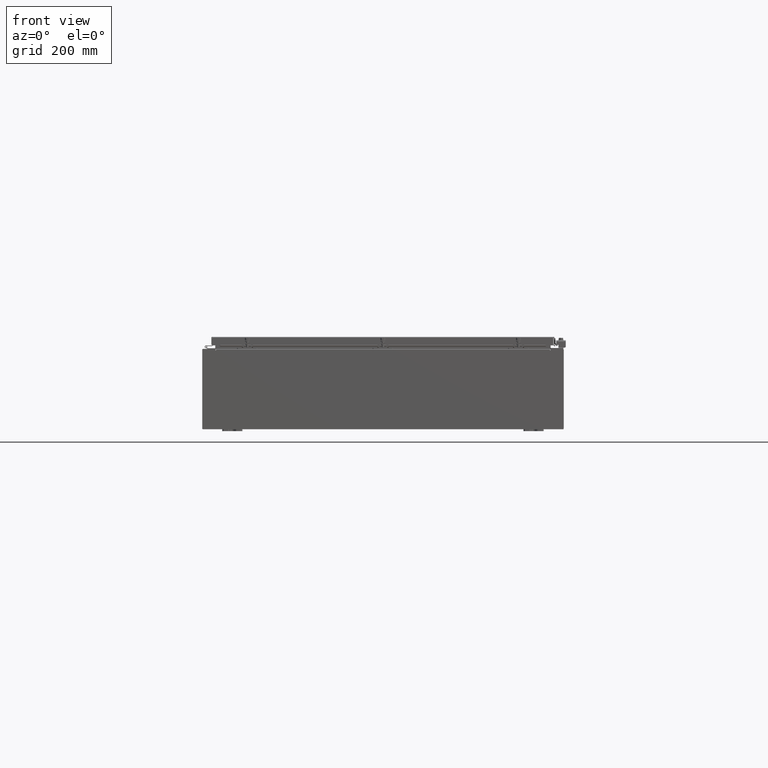
[diagram: clean part render]
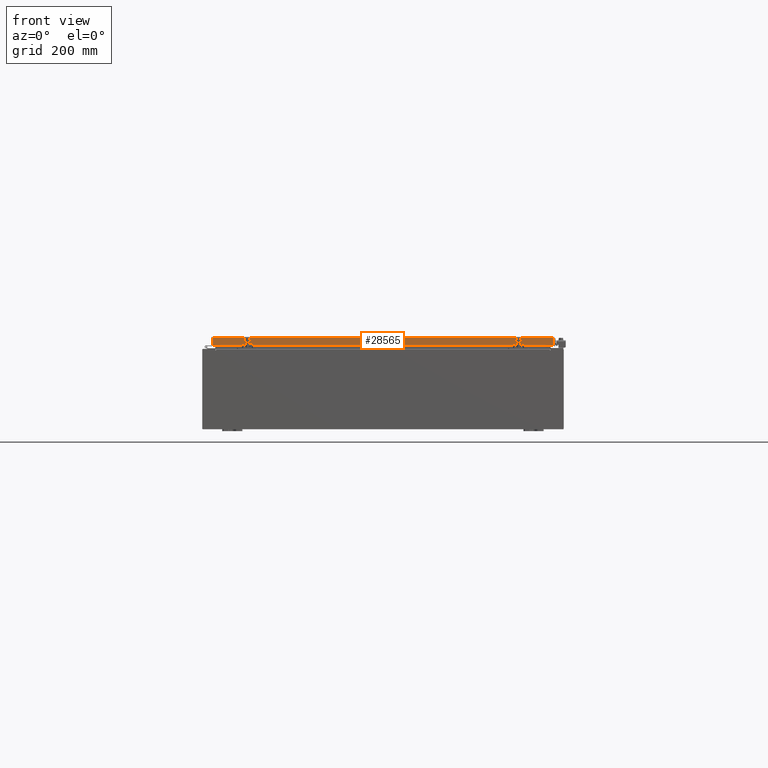
[diagram: same view with one face highlighted and labeled with its STEP entity id]
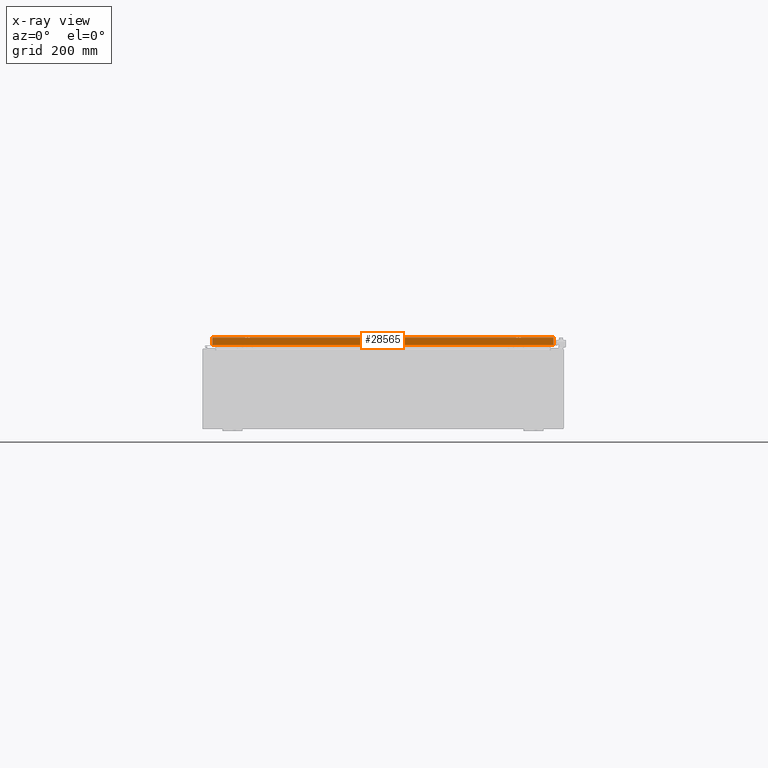
[diagram: x-ray of the same camera — body ghosted, the highlighted face saturated]
A machine part, front view. The second image highlights one B-rep face of the part: STEP entity #28565.
The next image is the same camera in x-ray: the body ghosted, the highlighted face saturated — about 0% of this face is hidden behind the body in this view.
In plain terms, the highlighted planar face has unit normal (-0, 1, -0).
Its self-contained STEP definition (entity closure, byte-faithful):
#1602 = LINE ( 'NONE', #49818, #38871 ) ;
#2931 = LINE ( 'NONE', #3341, #50149 ) ;
#2983 = VERTEX_POINT ( 'NONE', #62143 ) ;
#3341 = CARTESIAN_POINT ( 'NONE',  ( 16.98915786437627100, -29.09400000000000100, -0.07469999999999958600 ) ) ;
#3419 = LINE ( 'NONE', #14286, #42233 ) ;
#3760 = VECTOR ( 'NONE', #26784, 39.37007874015748100 ) ;
#4356 = LINE ( 'NONE', #61528, #14259 ) ;
#5036 = AXIS2_PLACEMENT_3D ( 'NONE', #62014, #18445, #52466 ) ;
#5350 = EDGE_CURVE ( 'NONE', #2983, #24829, #5596, .T. ) ;
#5596 = LINE ( 'NONE', #41689, #54332 ) ;
#5892 = CARTESIAN_POINT ( 'NONE',  ( -16.98915786437626700, -29.09400000000000100, -0.08769999999999547600 ) ) ;
#7914 = ORIENTED_EDGE ( 'NONE', *, *, #51559, .F. ) ;
#8029 = FACE_OUTER_BOUND ( 'NONE', #51658, .T. ) ;
#8956 = VERTEX_POINT ( 'NONE', #61886 ) ;
#14259 = VECTOR ( 'NONE', #27500, 39.37007874015748100 ) ;
#14286 = CARTESIAN_POINT ( 'NONE',  ( -16.98915786437626700, -29.09400000000000100, 1.642858579540496700E-013 ) ) ;
#14580 = CARTESIAN_POINT ( 'NONE',  ( 16.98915786437627100, -29.09400000000000100, -0.08769999999999549000 ) ) ;
#15785 = DIRECTION ( 'NONE',  ( -1.000000000000000000, -0.0000000000000000000, 1.239713195391617100E-016 ) ) ;
#18445 = DIRECTION ( 'NONE',  ( -6.989207801985715000E-031, 1.000000000000000000, -5.637761885544721100E-015 ) ) ;
#20699 = EDGE_CURVE ( 'NONE', #39303, #36266, #3419, .T. ) ;
#20989 = ORIENTED_EDGE ( 'NONE', *, *, #5350, .F. ) ;
#24829 = VERTEX_POINT ( 'NONE', #38288 ) ;
#26567 = ORIENTED_EDGE ( 'NONE', *, *, #50677, .F. ) ;
#26784 = DIRECTION ( 'NONE',  ( -1.000000000000000000, -0.0000000000000000000, 1.239713195391617100E-016 ) ) ;
#27500 = DIRECTION ( 'NONE',  ( 1.000000000000000000, 6.989207801985715800E-031, -3.922586267643549700E-045 ) ) ;
#28565 = ADVANCED_FACE ( 'NONE', ( #8029 ), #47563, .F. ) ;
#30099 = VERTEX_POINT ( 'NONE', #14580 ) ;
#31804 = ORIENTED_EDGE ( 'NONE', *, *, #45136, .F. ) ;
#32641 = DIRECTION ( 'NONE',  ( -0.0000000000000000000, -5.637761885544721800E-015, -1.000000000000000000 ) ) ;
#33885 = EDGE_CURVE ( 'NONE', #8956, #2983, #54001, .T. ) ;
#36266 = VERTEX_POINT ( 'NONE', #38066 ) ;
#38066 = CARTESIAN_POINT ( 'NONE',  ( -16.98915786437626700, -29.09400000000000500, -0.8499999999999954300 ) ) ;
#38288 = CARTESIAN_POINT ( 'NONE',  ( -16.23915786437626000, -29.09400000000000800, -0.8499999999999994200 ) ) ;
#38871 = VECTOR ( 'NONE', #15785, 39.37007874015748100 ) ;
#39303 = VERTEX_POINT ( 'NONE', #5892 ) ;
#40707 = ORIENTED_EDGE ( 'NONE', *, *, #33885, .F. ) ;
#41689 = CARTESIAN_POINT ( 'NONE',  ( 16.23915786437626400, -29.09400000000000800, -0.8499999999999994200 ) ) ;
#42165 = DIRECTION ( 'NONE',  ( -1.000000000000000000, 0.0000000000000000000, 0.0000000000000000000 ) ) ;
#42233 = VECTOR ( 'NONE', #43403, 39.37007874015748100 ) ;
#43403 = DIRECTION ( 'NONE',  ( 0.0000000000000000000, -5.637761885544721800E-015, -1.000000000000000000 ) ) ;
#45136 = EDGE_CURVE ( 'NONE', #24829, #36266, #1602, .T. ) ;
#47563 = PLANE ( 'NONE',  #5036 ) ;
#49818 = CARTESIAN_POINT ( 'NONE',  ( 17.07800000000000300, -29.09400000000000500, -0.8499999999999996400 ) ) ;
#50149 = VECTOR ( 'NONE', #32641, 39.37007874015748100 ) ;
#50677 = EDGE_CURVE ( 'NONE', #30099, #8956, #2931, .T. ) ;
#51233 = CARTESIAN_POINT ( 'NONE',  ( 17.07800000000000300, -29.09400000000000500, -0.8499999999999996400 ) ) ;
#51559 = EDGE_CURVE ( 'NONE', #39303, #30099, #4356, .T. ) ;
#51658 = EDGE_LOOP ( 'NONE', ( #7914, #60390, #31804, #20989, #40707, #26567 ) ) ;
#52466 = DIRECTION ( 'NONE',  ( 0.0000000000000000000, 5.637761885544721100E-015, 1.000000000000000000 ) ) ;
#54001 = LINE ( 'NONE', #51233, #3760 ) ;
#54332 = VECTOR ( 'NONE', #42165, 39.37007874015748100 ) ;
#60390 = ORIENTED_EDGE ( 'NONE', *, *, #20699, .T. ) ;
#61528 = CARTESIAN_POINT ( 'NONE',  ( 17.07800000000000300, -29.09400000000000100, -0.08769999999999547600 ) ) ;
#61886 = CARTESIAN_POINT ( 'NONE',  ( 16.98915786437627100, -29.09400000000000500, -0.8499999999999996400 ) ) ;
#62014 = CARTESIAN_POINT ( 'NONE',  ( 2.033440117909723900E-029, -29.09400000000000100, 1.642858579540496700E-013 ) ) ;
#62143 = CARTESIAN_POINT ( 'NONE',  ( 16.23915786437626400, -29.09400000000000800, -0.8499999999999994200 ) ) ;